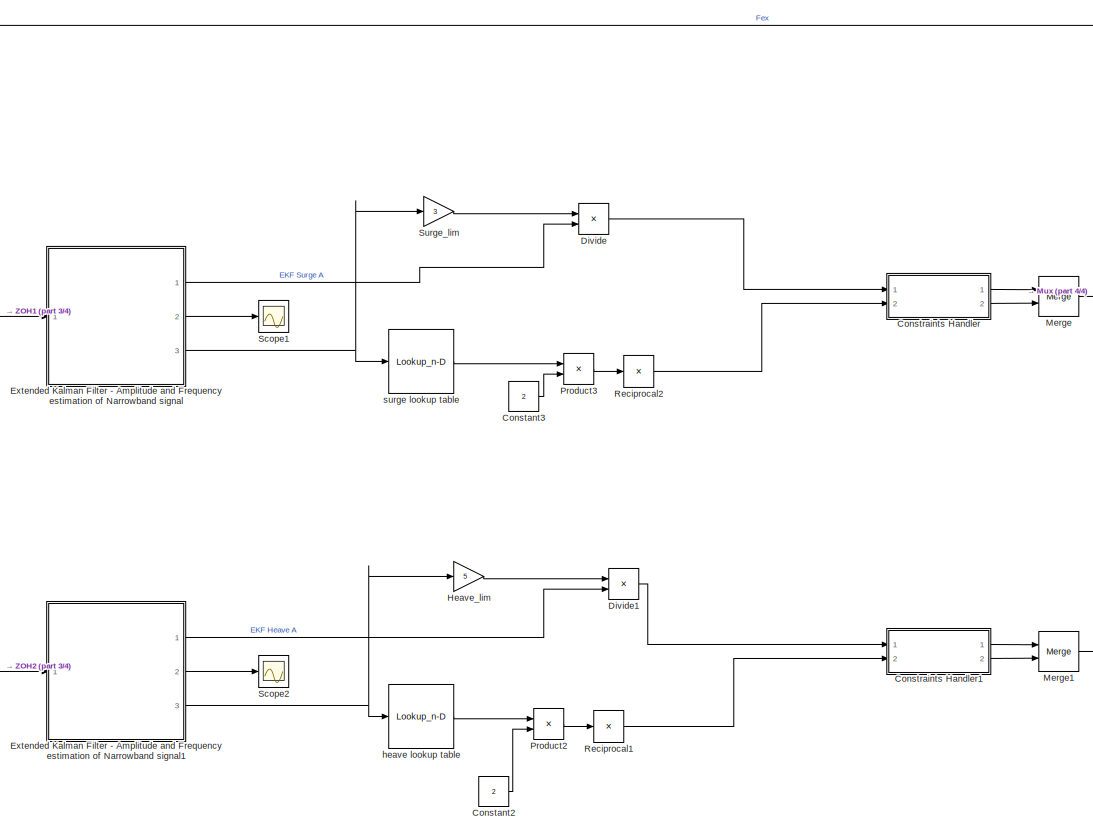
[diagram: root canvas - part 1/4, center side, full height]
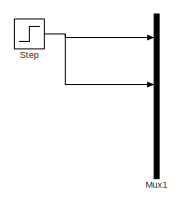
[diagram: root canvas - part 2/4, top left region]
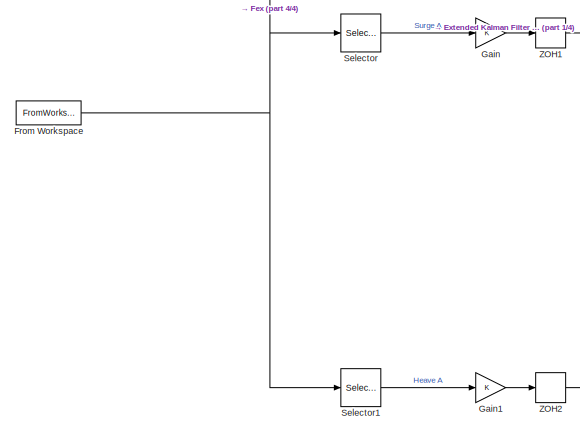
[diagram: root canvas - part 3/4, middle left region]
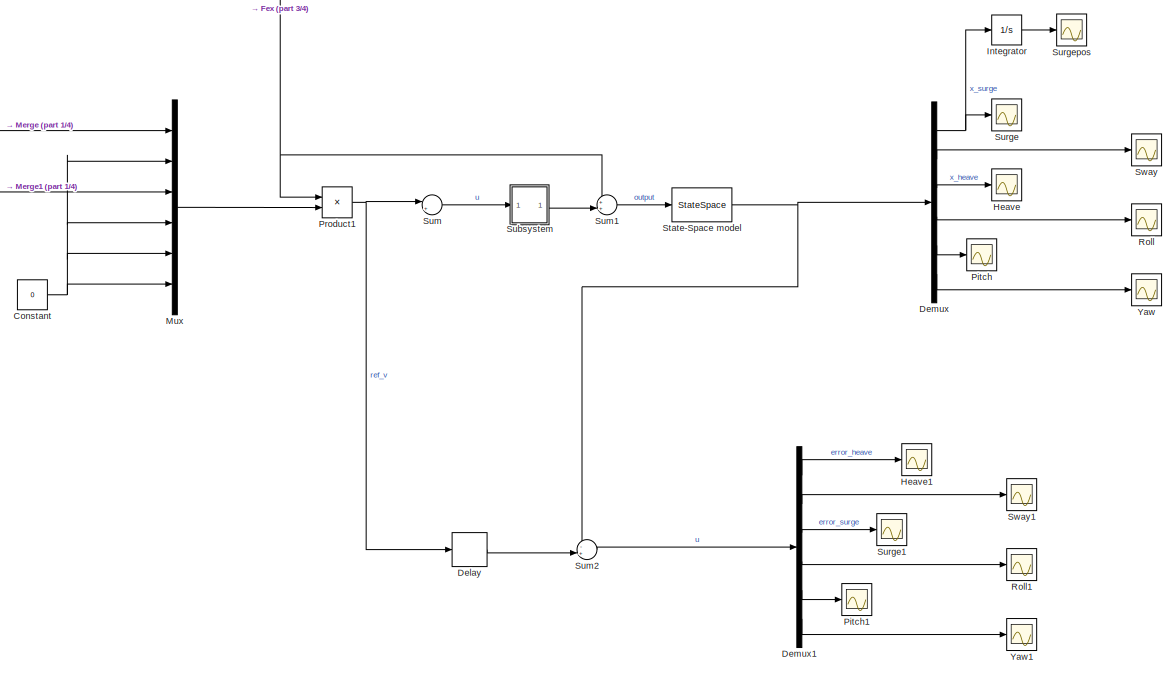
[diagram: root canvas - part 4/4, middle right region]
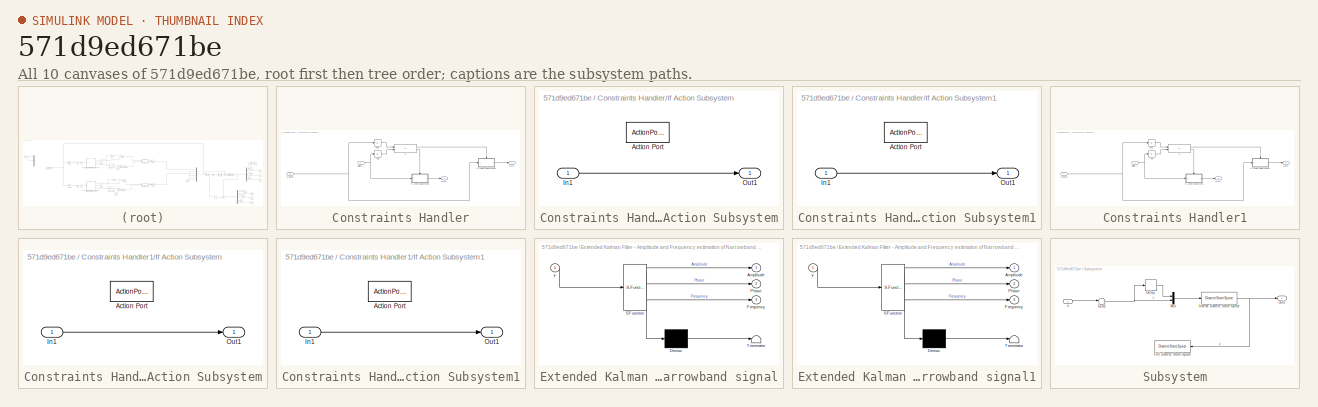
[diagram: thumbnail index - all 10 canvases of the model, root first then tree order]
MODEL slx_571d9ed671be
KIND model
CONFIG AbsTol = auto
CONFIG EnableMultiTasking = off
CONFIG FixedStep = 0.02
CONFIG MaxStep = auto
CONFIG MinStep = auto
CONFIG RelTol = 1e-3
CONFIG SampleTimeConstraint = Unconstrained
CONFIG Solver = ode4
CONFIG SolverName = ode4
CONFIG StartTime = 0.0
CONFIG StopTime = 300
BLOCK [Constant] Constant
  Value = 0
BLOCK [Constant] Constant2
  Value = 2
BLOCK [Constant] Constant3
  Value = 2
BLOCK [SubSystem] Constraints Handler
  Ports = [2, 2]
  RequestExecContextInheritance = off
BLOCK [Inport] Constraints Handler/1//2B(w)
  IconDisplay = Port number
  Port = 2
BLOCK [Abs] Constraints Handler/Abs
  SaturateOnIntegerOverflow = off
BLOCK [Abs] Constraints Handler/Abs1
  SaturateOnIntegerOverflow = off
BLOCK [If] Constraints Handler/If
  IfExpression = u2>u1
  NumInputs = 2
  Ports = [2, 2]
BLOCK [SubSystem] Constraints Handler/If Action Subsystem
  Ports = [1, 1, 0, 0, 0, 0, 0, 1]
  RequestExecContextInheritance = off
  TreatAsAtomicUnit = on
BLOCK [ActionPort] Constraints Handler/If Action Subsystem/Action Port
  ActionType = else
BLOCK [Inport] Constraints Handler/If Action Subsystem/In1
  IconDisplay = Port number
BLOCK [Outport] Constraints Handler/If Action Subsystem/Out1
  IconDisplay = Port number
BLOCK [SubSystem] Constraints Handler/If Action Subsystem1
  Ports = [1, 1, 0, 0, 0, 0, 0, 1]
  RequestExecContextInheritance = off
  TreatAsAtomicUnit = on
BLOCK [ActionPort] Constraints Handler/If Action Subsystem1/Action Port
  ActionType = then
BLOCK [Inport] Constraints Handler/If Action Subsystem1/In1
  IconDisplay = Port number
BLOCK [Outport] Constraints Handler/If Action Subsystem1/Out1
  IconDisplay = Port number
BLOCK [Outport] Constraints Handler/Out1
  IconDisplay = Port number
BLOCK [Outport] Constraints Handler/Out2
  IconDisplay = Port number
  Port = 2
BLOCK [Inport] Constraints Handler/wXlim//A
  IconDisplay = Port number
BLOCK [SubSystem] Constraints Handler1
  Ports = [2, 2]
  RequestExecContextInheritance = off
BLOCK [Inport] Constraints Handler1/1//2B(w)
  IconDisplay = Port number
  Port = 2
BLOCK [Abs] Constraints Handler1/Abs
  SaturateOnIntegerOverflow = off
BLOCK [Abs] Constraints Handler1/Abs1
  SaturateOnIntegerOverflow = off
BLOCK [If] Constraints Handler1/If
  IfExpression = u2>u1
  NumInputs = 2
  Ports = [2, 2]
BLOCK [SubSystem] Constraints Handler1/If Action Subsystem
  Ports = [1, 1, 0, 0, 0, 0, 0, 1]
  RequestExecContextInheritance = off
  TreatAsAtomicUnit = on
BLOCK [ActionPort] Constraints Handler1/If Action Subsystem/Action Port
  ActionType = else
BLOCK [Inport] Constraints Handler1/If Action Subsystem/In1
  IconDisplay = Port number
BLOCK [Outport] Constraints Handler1/If Action Subsystem/Out1
  IconDisplay = Port number
BLOCK [SubSystem] Constraints Handler1/If Action Subsystem1
  Ports = [1, 1, 0, 0, 0, 0, 0, 1]
  RequestExecContextInheritance = off
  TreatAsAtomicUnit = on
BLOCK [ActionPort] Constraints Handler1/If Action Subsystem1/Action Port
  ActionType = then
BLOCK [Inport] Constraints Handler1/If Action Subsystem1/In1
  IconDisplay = Port number
BLOCK [Outport] Constraints Handler1/If Action Subsystem1/Out1
  IconDisplay = Port number
BLOCK [Outport] Constraints Handler1/Out1
  IconDisplay = Port number
BLOCK [Outport] Constraints Handler1/Out2
  IconDisplay = Port number
  Port = 2
BLOCK [Inport] Constraints Handler1/wXlim//A
  IconDisplay = Port number
BLOCK [Delay] Delay
  DelayLength = 1
  InitialCondition = 0
  InputPortMap = u0
  Ports = [1, 1]
BLOCK [Demux] Demux
  DisplayOption = bar
  Outputs = 6
  Ports = [1, 6]
BLOCK [Demux] Demux1
  DisplayOption = bar
  Outputs = 6
  Ports = [1, 6]
BLOCK [Product] Divide
  InputSameDT = off
  Inputs = */
  OutDataTypeStr = Inherit: Inherit via internal rule
  Ports = [2, 1]
  RndMeth = Floor
  SaturateOnIntegerOverflow = off
BLOCK [Product] Divide1
  InputSameDT = off
  Inputs = */
  OutDataTypeStr = Inherit: Inherit via internal rule
  Ports = [2, 1]
  RndMeth = Floor
  SaturateOnIntegerOverflow = off
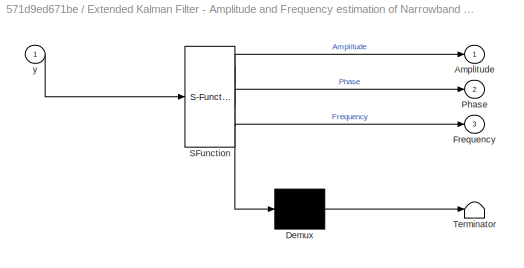
BLOCK [SubSystem] Extended Kalman Filter - Amplitude and Frequency estimation of Narrowband signal
  ErrorFcn = Stateflow.Translate.translate
  PermitHierarchicalResolution = ExplicitOnly
  Ports = [1, 3]
  RequestExecContextInheritance = off
  SFBlockType = MATLAB Function
  TreatAsAtomicUnit = on
BLOCK [Demux] Extended Kalman Filter - Amplitude and Frequency estimation of Narrowband signal/ Demux 
  Outputs = 1
  Ports = [1, 1]
BLOCK [S-Function] Extended Kalman Filter - Amplitude and Frequency estimation of Narrowband signal/ SFunction 
  EnableBusSupport = on
  FunctionName = sf_sfun
  PortCounts = [1 4]
  Ports = [1, 4]
  SFcnIsStateOwnerBlock = off
  SFunctionDeploymentMode = off
  Tag = Stateflow S-Function constraints_model 1
BLOCK [Terminator] Extended Kalman Filter - Amplitude and Frequency estimation of Narrowband signal/ Terminator 
BLOCK [Outport] Extended Kalman Filter - Amplitude and Frequency estimation of Narrowband signal/Amplitude
  IconDisplay = Port number
BLOCK [Outport] Extended Kalman Filter - Amplitude and Frequency estimation of Narrowband signal/Frequency
  IconDisplay = Port number
  Port = 3
BLOCK [Outport] Extended Kalman Filter - Amplitude and Frequency estimation of Narrowband signal/Phase
  IconDisplay = Port number
  Port = 2
BLOCK [Inport] Extended Kalman Filter - Amplitude and Frequency estimation of Narrowband signal/y
  IconDisplay = Port number
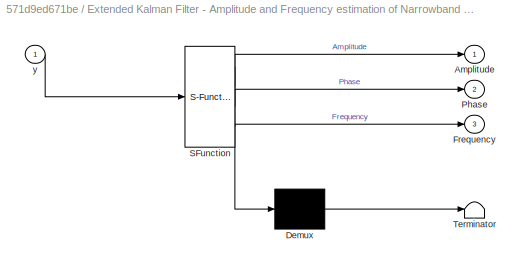
BLOCK [SubSystem] Extended Kalman Filter - Amplitude and Frequency estimation of Narrowband signal1
  ErrorFcn = Stateflow.Translate.translate
  PermitHierarchicalResolution = ExplicitOnly
  Ports = [1, 3]
  RequestExecContextInheritance = off
  SFBlockType = MATLAB Function
  TreatAsAtomicUnit = on
BLOCK [Demux] Extended Kalman Filter - Amplitude and Frequency estimation of Narrowband signal1/ Demux 
  Outputs = 1
  Ports = [1, 1]
BLOCK [S-Function] Extended Kalman Filter - Amplitude and Frequency estimation of Narrowband signal1/ SFunction 
  EnableBusSupport = on
  FunctionName = sf_sfun
  PortCounts = [1 4]
  Ports = [1, 4]
  SFcnIsStateOwnerBlock = off
  SFunctionDeploymentMode = off
  Tag = Stateflow S-Function constraints_model 2
BLOCK [Terminator] Extended Kalman Filter - Amplitude and Frequency estimation of Narrowband signal1/ Terminator 
BLOCK [Outport] Extended Kalman Filter - Amplitude and Frequency estimation of Narrowband signal1/Amplitude
  IconDisplay = Port number
BLOCK [Outport] Extended Kalman Filter - Amplitude and Frequency estimation of Narrowband signal1/Frequency
  IconDisplay = Port number
  Port = 3
BLOCK [Outport] Extended Kalman Filter - Amplitude and Frequency estimation of Narrowband signal1/Phase
  IconDisplay = Port number
  Port = 2
BLOCK [Inport] Extended Kalman Filter - Amplitude and Frequency estimation of Narrowband signal1/y
  IconDisplay = Port number
BLOCK [FromWorkspace] From Workspace
  SampleTime = 0
  VariableName = Fex_1_10
  ZeroCross = on
BLOCK [Gain] Gain
  OutDataTypeStr = Inherit: Inherit via internal rule
  ParamDataTypeStr = Inherit: Inherit via internal rule
  SaturateOnIntegerOverflow = off
BLOCK [Gain] Gain1
  OutDataTypeStr = Inherit: Inherit via internal rule
  ParamDataTypeStr = Inherit: Inherit via internal rule
  SaturateOnIntegerOverflow = off
BLOCK [Scope] Heave
  Floating = off
  NumInputPorts = 1
  Ports = [1]
  ScopeSpecificationString = Simulink.scopes.TimeScopeBlockCfg('CurrentConfiguration', extmgr.ConfigurationSet(extmgr.Configuration('Core','General UI',true),extmgr.Configuration('Core','Source UI',true),extmgr.Configuration('Sources','WiredSimulink',true,'DataLoggingVariableName','ScopeData1'),extmgr.Configuration('Visuals','Time Domain',true,'SerializedDisplays',{struct('MinYLimReal','-2.24543','MaxYLimReal','1.97438','YLab...<+1410ch>
BLOCK [Scope] Heave1
  Floating = off
  NumInputPorts = 1
  Ports = [1]
  ScopeSpecificationString = Simulink.scopes.TimeScopeBlockCfg('CurrentConfiguration', extmgr.ConfigurationSet(extmgr.Configuration('Core','General UI',true),extmgr.Configuration('Core','Source UI',true),extmgr.Configuration('Sources','WiredSimulink',true,'DataLoggingVariableName','ScopeData2'),extmgr.Configuration('Visuals','Time Domain',true,'SerializedDisplays',{struct('MinYLimReal','-0.01097','MaxYLimReal','0.02219','YLab...<+1422ch>
BLOCK [Gain] Heave_lim
  Gain = 5
  OutDataTypeStr = Inherit: Inherit via internal rule
  ParamDataTypeStr = Inherit: Inherit via internal rule
  SaturateOnIntegerOverflow = off
BLOCK [Integrator] Integrator
  Ports = [1, 1]
BLOCK [Merge] Merge
  Ports = [2, 1]
BLOCK [Merge] Merge1
  Ports = [2, 1]
BLOCK [Mux] Mux
  DisplayOption = bar
  Inputs = 6
  Ports = [6, 1]
BLOCK [Mux] Mux1
  DisplayOption = bar
  Inputs = 6
  Ports = [6, 1]
BLOCK [Scope] Pitch
  Floating = off
  NumInputPorts = 1
  Ports = [1]
  ScopeSpecificationString = Simulink.scopes.TimeScopeBlockCfg('CurrentConfiguration', extmgr.ConfigurationSet(extmgr.Configuration('Core','General UI',true),extmgr.Configuration('Core','Source UI',true),extmgr.Configuration('Sources','WiredSimulink',true,'DataLoggingVariableName','ScopeData2'),extmgr.Configuration('Visuals','Time Domain',true,'SerializedDisplays',{struct('MinYLimReal','-0.32331','MaxYLimReal','0.31597','YLab...<+1385ch>
BLOCK [Scope] Pitch1
  Floating = off
  NumInputPorts = 1
  Ports = [1]
  ScopeSpecificationString = Simulink.scopes.TimeScopeBlockCfg('CurrentConfiguration', extmgr.ConfigurationSet(extmgr.Configuration('Core','General UI',true),extmgr.Configuration('Core','Source UI',true),extmgr.Configuration('Sources','WiredSimulink',true,'DataLoggingVariableName','ScopeData3'),extmgr.Configuration('Visuals','Time Domain',true,'SerializedDisplays',{struct('MinYLimReal','-0.32331','MaxYLimReal','0.31597','YLab...<+1385ch>
BLOCK [Product] Product1
  InputSameDT = off
  OutDataTypeStr = Inherit: Inherit via internal rule
  Ports = [2, 1]
  RndMeth = Floor
  SaturateOnIntegerOverflow = off
BLOCK [Product] Product2
  InputSameDT = off
  OutDataTypeStr = Inherit: Inherit via internal rule
  Ports = [2, 1]
  RndMeth = Floor
  SaturateOnIntegerOverflow = off
BLOCK [Product] Product3
  InputSameDT = off
  OutDataTypeStr = Inherit: Inherit via internal rule
  Ports = [2, 1]
  RndMeth = Floor
  SaturateOnIntegerOverflow = off
BLOCK [Product] Reciprocal1
  InputSameDT = off
  Inputs = /
  OutDataTypeStr = Inherit: Inherit via internal rule
  Ports = [1, 1]
  RndMeth = Floor
  SaturateOnIntegerOverflow = off
BLOCK [Product] Reciprocal2
  InputSameDT = off
  Inputs = /
  OutDataTypeStr = Inherit: Inherit via internal rule
  Ports = [1, 1]
  RndMeth = Floor
  SaturateOnIntegerOverflow = off
BLOCK [Scope] Roll
  Floating = off
  NumInputPorts = 1
  Ports = [1]
  ScopeSpecificationString = Simulink.scopes.TimeScopeBlockCfg('CurrentConfiguration', extmgr.ConfigurationSet(extmgr.Configuration('Core','General UI',true),extmgr.Configuration('Core','Source UI',true),extmgr.Configuration('Sources','WiredSimulink',true,'DataLoggingVariableName','ScopeData2'),extmgr.Configuration('Visuals','Time Domain',true,'SerializedDisplays',{struct('MinYLimReal','-0.01689','MaxYLimReal','0.01142','YLab...<+1385ch>
BLOCK [Scope] Roll1
  Floating = off
  NumInputPorts = 1
  Ports = [1]
  ScopeSpecificationString = Simulink.scopes.TimeScopeBlockCfg('CurrentConfiguration', extmgr.ConfigurationSet(extmgr.Configuration('Core','General UI',true),extmgr.Configuration('Core','Source UI',true),extmgr.Configuration('Sources','WiredSimulink',true,'DataLoggingVariableName','ScopeData4'),extmgr.Configuration('Visuals','Time Domain',true,'SerializedDisplays',{struct('MinYLimReal','-0.01689','MaxYLimReal','0.01142','YLab...<+1385ch>
BLOCK [Scope] Scope1
  Floating = off
  NumInputPorts = 1
  Ports = [1]
  ScopeSpecificationString = Simulink.scopes.TimeScopeBlockCfg('CurrentConfiguration', extmgr.ConfigurationSet(extmgr.Configuration('Core','General UI',true),extmgr.Configuration('Core','Source UI',true),extmgr.Configuration('Sources','WiredSimulink',true,'DataLoggingVariableName','ScopeData1','DataLoggingSaveFormat','StructureWithTime','DataLoggingDecimation','1','DataLoggingDecimateData',true),extmgr.Configuration('Visuals'...<+1861ch>
BLOCK [Scope] Scope2
  Floating = off
  NumInputPorts = 1
  Ports = [1]
  ScopeSpecificationString = Simulink.scopes.TimeScopeBlockCfg('CurrentConfiguration', extmgr.ConfigurationSet(extmgr.Configuration('Core','General UI',true),extmgr.Configuration('Core','Source UI',true),extmgr.Configuration('Sources','WiredSimulink',true,'DataLoggingVariableName','ScopeData1','DataLoggingSaveFormat','StructureWithTime','DataLoggingDecimation','1','DataLoggingDecimateData',true),extmgr.Configuration('Visuals'...<+1861ch>
BLOCK [Selector] Selector
  IndexOptions = Index vector (dialog)
  Indices = 1
  InputPortWidth = 6
  OutputSizes = 1
  Ports = [1, 1]
BLOCK [Selector] Selector1
  IndexOptions = Index vector (dialog)
  Indices = 3
  InputPortWidth = 6
  OutputSizes = 1
  Ports = [1, 1]
BLOCK [StateSpace] State-Space model
  A = SS_full.A
  B = SS_full.B
  C = SS_full.C
  D = SS_full.D
  InitialCondition = 0
  Ports = [1, 1]
BLOCK [Step] Step
  SampleTime = 0
  Time = 20
BLOCK [SubSystem] Subsystem
  Ports = [1, 1]
  RequestExecContextInheritance = off
BLOCK [Delay] Subsystem/Delay
  DelayLength = 1
  InitialCondition = 0
  InputPortMap = u0
  Ports = [1, 1]
BLOCK [DiscreteStateSpace] Subsystem/Full Discrete State-Space
  A = SS_discrete.A
  B = SS_discrete.B
  C = SS_discrete.C
  D = SS_discrete.D
  SampleTime = -1
BLOCK [DiscreteStateSpace] Subsystem/Inverse Discrete State-Space
  A = SS_inverse.A
  B = SS_inverse.B
  C = SS_inverse.C
  D = SS_inverse.D
  SampleTime = -1
BLOCK [Mux] Subsystem/Mux
  DisplayOption = bar
  Inputs = 2
  Ports = [2, 1]
BLOCK [Outport] Subsystem/Out2
  IconDisplay = Port number
BLOCK [Sum] Subsystem/Sum3
  IconShape = round
  InputSameDT = off
  Inputs = |++
  OutDataTypeStr = Inherit: Inherit via internal rule
  Ports = [2, 1]
  SaturateOnIntegerOverflow = off
BLOCK [Inport] Subsystem/u
  IconDisplay = Port number
BLOCK [Sum] Sum
  IconShape = round
  InputSameDT = off
  Inputs = |+-
  OutDataTypeStr = Inherit: Inherit via internal rule
  Ports = [2, 1]
  SaturateOnIntegerOverflow = off
BLOCK [Sum] Sum1
  IconShape = round
  InputSameDT = off
  Inputs = ++|
  OutDataTypeStr = Inherit: Inherit via internal rule
  Ports = [2, 1]
  SaturateOnIntegerOverflow = off
BLOCK [Sum] Sum2
  IconShape = round
  InputSameDT = off
  Inputs = -+|
  OutDataTypeStr = Inherit: Inherit via internal rule
  Ports = [2, 1]
  SaturateOnIntegerOverflow = off
BLOCK [Scope] Surge
  Floating = off
  NumInputPorts = 1
  Ports = [1]
  ScopeSpecificationString = Simulink.scopes.TimeScopeBlockCfg('CurrentConfiguration', extmgr.ConfigurationSet(extmgr.Configuration('Core','General UI',true),extmgr.Configuration('Core','Source UI',true),extmgr.Configuration('Sources','WiredSimulink',true),extmgr.Configuration('Visuals','Time Domain',true,'SerializedDisplays',{struct('MinYLimReal','-4.03001','MaxYLimReal','3.94243','YLabelReal','','MinYLimMag','0.00000','MaxY...<+1404ch>
BLOCK [Scope] Surge1
  Floating = off
  NumInputPorts = 1
  Ports = [1]
  ScopeSpecificationString = Simulink.scopes.TimeScopeBlockCfg('CurrentConfiguration', extmgr.ConfigurationSet(extmgr.Configuration('Core','General UI',true),extmgr.Configuration('Core','Source UI',true),extmgr.Configuration('Sources','WiredSimulink',true,'DataLoggingVariableName','ScopeData5'),extmgr.Configuration('Visuals','Time Domain',true,'SerializedDisplays',{struct('MinYLimReal','-13.34525','MaxYLimReal','13.28933','YL...<+1395ch>
BLOCK [Gain] Surge_lim
  Gain = 3
  OutDataTypeStr = Inherit: Inherit via internal rule
  ParamDataTypeStr = Inherit: Inherit via internal rule
  SaturateOnIntegerOverflow = off
BLOCK [Scope] Surgepos
  Floating = off
  NumInputPorts = 1
  Ports = [1]
  ScopeSpecificationString = Simulink.scopes.TimeScopeBlockCfg('CurrentConfiguration', extmgr.ConfigurationSet(extmgr.Configuration('Core','General UI',true),extmgr.Configuration('Core','Source UI',true),extmgr.Configuration('Sources','WiredSimulink',true,'DataLoggingVariableName','ScopeData2'),extmgr.Configuration('Visuals','Time Domain',true,'SerializedDisplays',{struct('MinYLimReal','-7.04901','MaxYLimReal','7.03837','YLab...<+1421ch>
BLOCK [Scope] Sway
  Floating = off
  NumInputPorts = 1
  Ports = [1]
  ScopeSpecificationString = Simulink.scopes.TimeScopeBlockCfg('CurrentConfiguration', extmgr.ConfigurationSet(extmgr.Configuration('Core','General UI',true),extmgr.Configuration('Core','Source UI',true),extmgr.Configuration('Sources','WiredSimulink',true,'DataLoggingVariableName','ScopeData1'),extmgr.Configuration('Visuals','Time Domain',true,'SerializedDisplays',{struct('MinYLimReal','-0.44361','MaxYLimReal','0.59812','YLab...<+1385ch>
BLOCK [Scope] Sway1
  Floating = off
  NumInputPorts = 1
  Ports = [1]
  ScopeSpecificationString = Simulink.scopes.TimeScopeBlockCfg('CurrentConfiguration', extmgr.ConfigurationSet(extmgr.Configuration('Core','General UI',true),extmgr.Configuration('Core','Source UI',true),extmgr.Configuration('Sources','WiredSimulink',true,'DataLoggingVariableName','ScopeData6'),extmgr.Configuration('Visuals','Time Domain',true,'SerializedDisplays',{struct('MinYLimReal','-0.44361','MaxYLimReal','0.59812','YLab...<+1386ch>
BLOCK [Scope] Yaw
  Floating = off
  NumInputPorts = 1
  Ports = [1]
  ScopeSpecificationString = Simulink.scopes.TimeScopeBlockCfg('CurrentConfiguration', extmgr.ConfigurationSet(extmgr.Configuration('Core','General UI',true),extmgr.Configuration('Core','Source UI',true),extmgr.Configuration('Sources','WiredSimulink',true,'DataLoggingVariableName','ScopeData3'),extmgr.Configuration('Visuals','Time Domain',true,'SerializedDisplays',{struct('MinYLimReal','-0.01023','MaxYLimReal','0.01454','YLab...<+1385ch>
BLOCK [Scope] Yaw1
  Floating = off
  NumInputPorts = 1
  Ports = [1]
  ScopeSpecificationString = Simulink.scopes.TimeScopeBlockCfg('CurrentConfiguration', extmgr.ConfigurationSet(extmgr.Configuration('Core','General UI',true),extmgr.Configuration('Core','Source UI',true),extmgr.Configuration('Sources','WiredSimulink',true,'DataLoggingVariableName','ScopeData7'),extmgr.Configuration('Visuals','Time Domain',true,'SerializedDisplays',{struct('MinYLimReal','-0.01023','MaxYLimReal','0.01454','YLab...<+1385ch>
BLOCK [ZeroOrderHold] ZOH1
  SampleTime = 0.02
BLOCK [ZeroOrderHold] ZOH2
  SampleTime = 0.02
BLOCK [Lookup_n-D] heave lookup table
  BreakpointsForDimension1 = heave.freq
  InternalRulePriority = Speed
  NumberOfTableDimensions = 1
  Ports = [1, 1]
  RndMeth = Simplest
  Table = heave.amp
BLOCK [Lookup_n-D] surge lookup table
  BreakpointsForDimension1 = surge.freq
  InternalRulePriority = Speed
  NumberOfTableDimensions = 1
  Ports = [1, 1]
  RndMeth = Simplest
  Table = surge.amp
LINE Constant2:1 -> Product2:2
LINE Constant3:1 -> Product3:2
NET Constant:1 -> Mux:2, Mux:4, Mux:5, Mux:6
NET Constraints Handler/1//2B(w):1 -> Constraints Handler/Abs1:1, Constraints Handler/If Action Subsystem1:1
LINE Constraints Handler/Abs1:1 -> Constraints Handler/If:1
LINE Constraints Handler/Abs:1 -> Constraints Handler/If:2
LINE Constraints Handler/If Action Subsystem/In1:1 -> Constraints Handler/If Action Subsystem/Out1:1
LINE Constraints Handler/If Action Subsystem1/In1:1 -> Constraints Handler/If Action Subsystem1/Out1:1
LINE Constraints Handler/If Action Subsystem1:1 -> Constraints Handler/Out1:1
LINE Constraints Handler/If Action Subsystem:1 -> Constraints Handler/Out2:1
LINE Constraints Handler/If:1 -> Constraints Handler/If Action Subsystem1:ifaction
LINE Constraints Handler/If:2 -> Constraints Handler/If Action Subsystem:ifaction
NET Constraints Handler/wXlim//A:1 -> Constraints Handler/Abs:1, Constraints Handler/If Action Subsystem:1
NET Constraints Handler1/1//2B(w):1 -> Constraints Handler1/Abs1:1, Constraints Handler1/If Action Subsystem1:1
LINE Constraints Handler1/Abs1:1 -> Constraints Handler1/If:1
LINE Constraints Handler1/Abs:1 -> Constraints Handler1/If:2
LINE Constraints Handler1/If Action Subsystem/In1:1 -> Constraints Handler1/If Action Subsystem/Out1:1
LINE Constraints Handler1/If Action Subsystem1/In1:1 -> Constraints Handler1/If Action Subsystem1/Out1:1
LINE Constraints Handler1/If Action Subsystem1:1 -> Constraints Handler1/Out1:1
LINE Constraints Handler1/If Action Subsystem:1 -> Constraints Handler1/Out2:1
LINE Constraints Handler1/If:1 -> Constraints Handler1/If Action Subsystem1:ifaction
LINE Constraints Handler1/If:2 -> Constraints Handler1/If Action Subsystem:ifaction
NET Constraints Handler1/wXlim//A:1 -> Constraints Handler1/Abs:1, Constraints Handler1/If Action Subsystem:1
LINE Constraints Handler1:1 -> Merge1:1
LINE Constraints Handler1:2 -> Merge1:2
LINE Constraints Handler:1 -> Merge:1
LINE Constraints Handler:2 -> Merge:2
LINE Delay:1 -> Sum2:2
LINE Demux1:1 -> Heave1:1
LINE Demux1:2 -> Sway1:1
LINE Demux1:3 -> Surge1:1
LINE Demux1:4 -> Roll1:1
LINE Demux1:5 -> Pitch1:1
LINE Demux1:6 -> Yaw1:1
NET Demux:1 -> Integrator:1, Surge:1
LINE Demux:2 -> Sway:1
LINE Demux:3 -> Heave:1
LINE Demux:4 -> Roll:1
LINE Demux:5 -> Pitch:1
LINE Demux:6 -> Yaw:1
LINE Divide1:1 -> Constraints Handler1:1
LINE Divide:1 -> Constraints Handler:1
LINE Extended Kalman Filter - Amplitude and Frequency estimation of Narrowband signal1:1 -> Divide1:2
LINE Extended Kalman Filter - Amplitude and Frequency estimation of Narrowband signal1:2 -> Scope2:1
NET Extended Kalman Filter - Amplitude and Frequency estimation of Narrowband signal1:3 -> Heave_lim:1, heave lookup table:1
LINE Extended Kalman Filter - Amplitude and Frequency estimation of Narrowband signal:1 -> Divide:2
LINE Extended Kalman Filter - Amplitude and Frequency estimation of Narrowband signal:2 -> Scope1:1
NET Extended Kalman Filter - Amplitude and Frequency estimation of Narrowband signal:3 -> Surge_lim:1, surge lookup table:1
NET From Workspace:1 -> Product1:1, Selector1:1, Selector:1, Sum1:1
LINE Gain1:1 -> ZOH2:1
LINE Gain:1 -> ZOH1:1
LINE Heave_lim:1 -> Divide1:1
LINE Integrator:1 -> Surgepos:1
LINE Merge1:1 -> Mux:3
LINE Merge:1 -> Mux:1
LINE Mux:1 -> Product1:2
NET Product1:1 -> Delay:1, Sum:1
LINE Product2:1 -> Reciprocal1:1
LINE Product3:1 -> Reciprocal2:1
LINE Reciprocal1:1 -> Constraints Handler1:2
LINE Reciprocal2:1 -> Constraints Handler:2
LINE Selector1:1 -> Gain1:1
LINE Selector:1 -> Gain:1
NET State-Space model:1 -> Demux:1, Sum2:1
NET Step:1 -> Mux1:1, Mux1:3
LINE Subsystem/Delay:1 -> Subsystem/Mux:1
NET Subsystem/Inverse Discrete State-Space:1 -> Subsystem/Full Discrete State-Space:1, Subsystem/Out2:1
LINE Subsystem/Mux:1 -> Subsystem/Inverse Discrete State-Space:1
NET Subsystem/Sum3:1 -> Subsystem/Delay:1, Subsystem/Mux:2
LINE Subsystem/u:1 -> Subsystem/Sum3:1
LINE Subsystem:1 -> Sum1:2
LINE Sum1:1 -> State-Space model:1
LINE Sum2:1 -> Demux1:1
LINE Sum:1 -> Subsystem:1
LINE Surge_lim:1 -> Divide:1
LINE ZOH1:1 -> Extended Kalman Filter - Amplitude and Frequency estimation of Narrowband signal:1
LINE ZOH2:1 -> Extended Kalman Filter - Amplitude and Frequency estimation of Narrowband signal1:1
LINE heave lookup table:1 -> Product2:1
LINE surge lookup table:1 -> Product3:1
note: NET lines group one-source signal fan-out (src -> all destinations, sorted); 1:1 wires keep LINE
CHART Extended Kalman Filter - Amplitude
and Frequency estimation of
Narrowband signal states=1 transitions=1
  STATE_LABEL 'eML_blk_kernel()'
  STATE_LABEL "SCRIPT:\nfunction [Amplitude, Phase, Frequency]   = EKF_narrowband(y)\n\n% Initialization\npersistent P;\npersistent x;\n\ndt = 0.02; %edit this to match your timestep\n\nif isempty(P)\n    x = [0 0 0.1]';       %state estimate\n    P = diag([1e0 1e0 1e0]);    %Covariance matrix\nend\n\n%%%%%%%%%%%From Fusco thesis%%%%%%%%%%%%%%%%%%%%%\n%%%State vector X = [a theta w]\nx1 = x(1);  %Amplitude\nx2 = x(2);  %Phase\nw ...<+761ch>"
CHART Extended Kalman Filter - Amplitude
and Frequency estimation of
Narrowband signal1 states=1 transitions=1
  STATE_LABEL 'eML_blk_kernel()'
  STATE_LABEL "SCRIPT:\nfunction [Amplitude, Phase, Frequency]   = EKF_narrowband(y)\n\n% Initialization\npersistent P;\npersistent x;\n\ndt = 0.02; %edit this to match your timestep\n\nif isempty(P)\n    x = [0 0 0.1]';       %state estimate\n    P = diag([1e0 1e0 1e0]);    %Covariance matrix\nend\n\n%%%%%%%%%%%From Fusco thesis%%%%%%%%%%%%%%%%%%%%%\n%%%State vector X = [a theta w]\nx1 = x(1);  %Amplitude\nx2 = x(2);  %Phase\nw ...<+761ch>"
